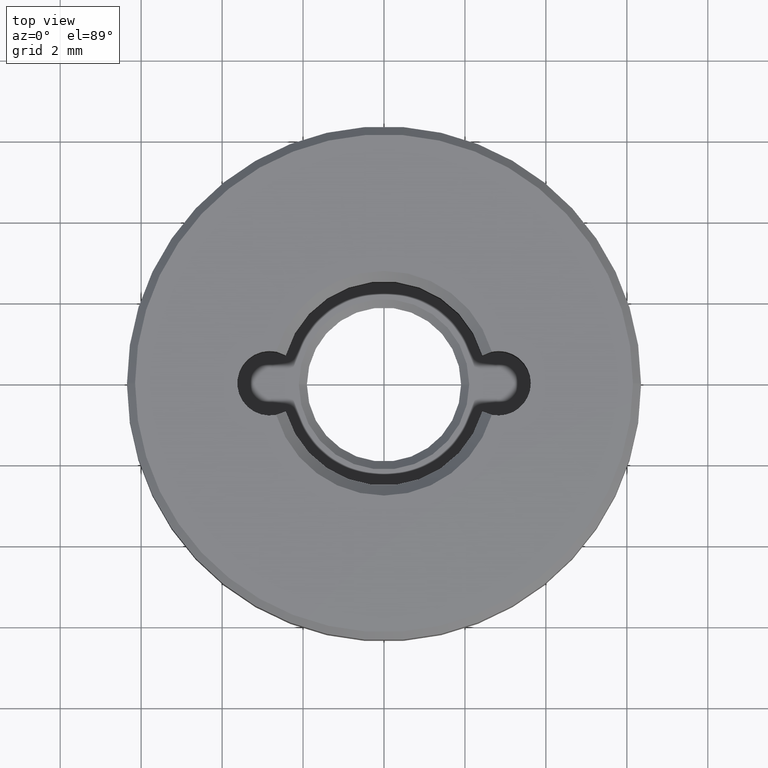
[diagram: clean part render]
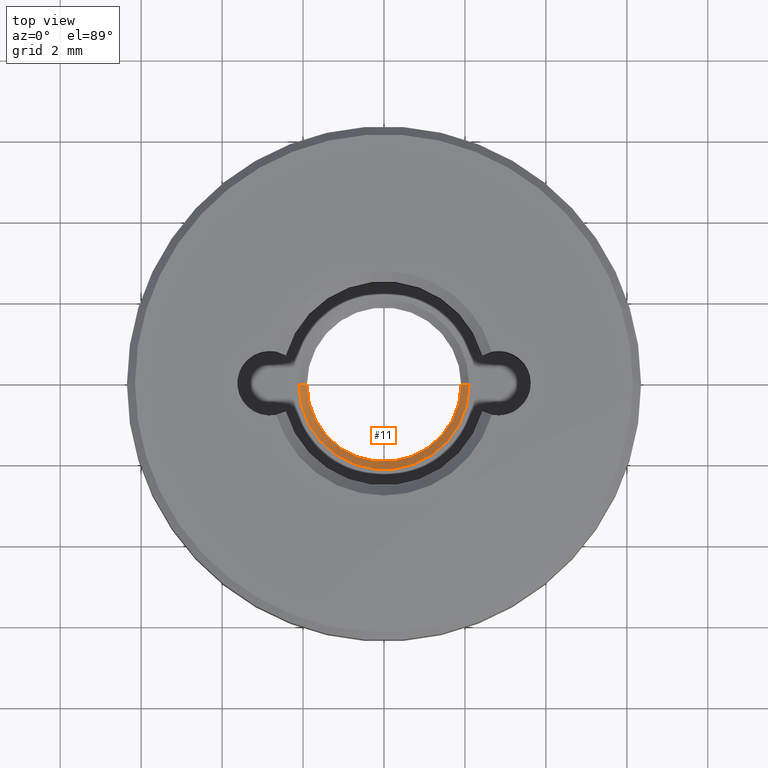
[diagram: same view with one face highlighted and labeled with its STEP entity id]
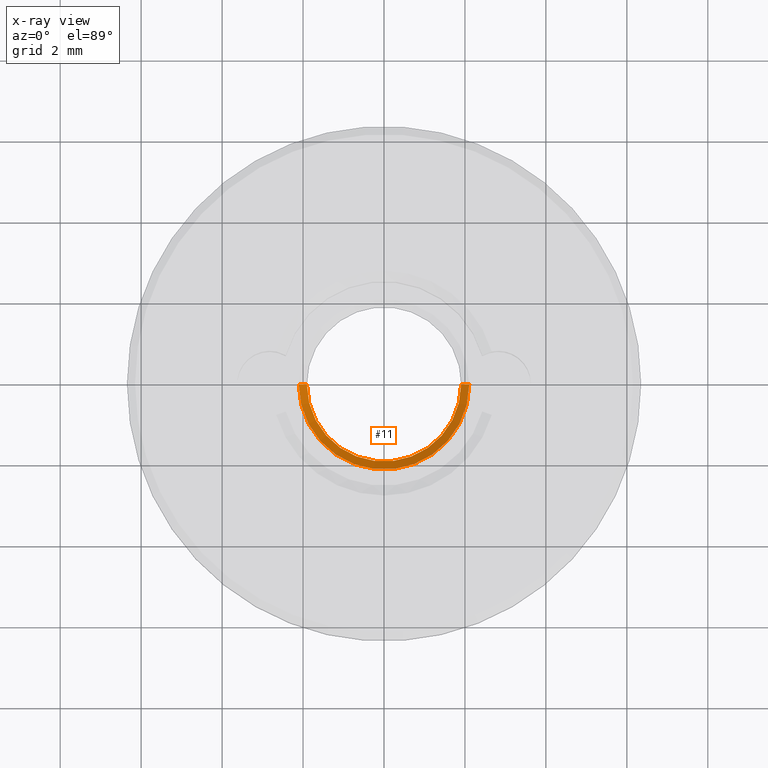
[diagram: x-ray of the same camera — body ghosted, the highlighted face saturated]
A machine part, top view. The second image highlights one B-rep face of the part: STEP entity #11.
The next image is the same camera in x-ray: the body ghosted, the highlighted face saturated — about 0% of this face is hidden behind the body in this view.
In plain terms, the highlighted conical surface has half-angle 45 deg.
Its self-contained STEP definition (entity closure, byte-faithful):
#11 = ADVANCED_FACE ( 'NONE', ( #486 ), #342, .F. ) ;
#19 = DIRECTION ( 'NONE',  ( -0.000000000000000000, -0.000000000000000000, -1.000000000000000000 ) ) ;
#21 = VERTEX_POINT ( 'NONE', #150 ) ;
#42 = DIRECTION ( 'NONE',  ( 0.7071067811865490160, 0.000000000000000000, 0.7071067811865460184 ) ) ;
#56 = VERTEX_POINT ( 'NONE', #698 ) ;
#102 = LINE ( 'NONE', #537, #378 ) ;
#123 = ORIENTED_EDGE ( 'NONE', *, *, #570, .F. ) ;
#124 = DIRECTION ( 'NONE',  ( 1.000000000000000000, 0.000000000000000000, 0.000000000000000000 ) ) ;
#130 = EDGE_CURVE ( 'NONE', #21, #56, #483, .T. ) ;
#150 = CARTESIAN_POINT ( 'NONE',  ( 1.905000000000000027, 0.000000000000000000, 0.4000000000000016875 ) ) ;
#159 = DIRECTION ( 'NONE',  ( 1.000000000000000000, 0.000000000000000000, 0.000000000000000000 ) ) ;
#180 = CARTESIAN_POINT ( 'NONE',  ( 0.000000000000000000, 0.000000000000000000, 0.4000000000000016875 ) ) ;
#190 = AXIS2_PLACEMENT_3D ( 'NONE', #297, #19, #515 ) ;
#201 = ORIENTED_EDGE ( 'NONE', *, *, #130, .F. ) ;
#251 = AXIS2_PLACEMENT_3D ( 'NONE', #491, #423, #159 ) ;
#297 = CARTESIAN_POINT ( 'NONE',  ( 0.000000000000000000, 0.000000000000000000, 0.6000000000000000888 ) ) ;
#314 = CARTESIAN_POINT ( 'NONE',  ( -2.104999999999999094, 2.577881512205177847E-16, 0.6000000000000000888 ) ) ;
#342 = CONICAL_SURFACE ( 'NONE', #251, 1.905000000000000027, 0.7853981633974504994 ) ;
#357 = ORIENTED_EDGE ( 'NONE', *, *, #493, .T. ) ;
#378 = VECTOR ( 'NONE', #422, 1000.000000000000114 ) ;
#408 = VERTEX_POINT ( 'NONE', #314 ) ;
#414 = AXIS2_PLACEMENT_3D ( 'NONE', #180, #604, #124 ) ;
#422 = DIRECTION ( 'NONE',  ( -0.7071067811865490160, 8.659560562354952580E-17, 0.7071067811865460184 ) ) ;
#423 = DIRECTION ( 'NONE',  ( 0.000000000000000000, 0.000000000000000000, 1.000000000000000000 ) ) ;
#462 = VERTEX_POINT ( 'NONE', #694 ) ;
#483 = LINE ( 'NONE', #577, #631 ) ;
#486 = FACE_OUTER_BOUND ( 'NONE', #501, .T. ) ;
#491 = CARTESIAN_POINT ( 'NONE',  ( 0.000000000000000000, 0.000000000000000000, 0.4000000000000016875 ) ) ;
#493 = EDGE_CURVE ( 'NONE', #462, #408, #102, .T. ) ;
#495 = CIRCLE ( 'NONE', #190, 2.104999999999999094 ) ;
#501 = EDGE_LOOP ( 'NONE', ( #123, #357, #556, #201 ) ) ;
#515 = DIRECTION ( 'NONE',  ( 1.000000000000000000, 0.000000000000000000, 0.000000000000000000 ) ) ;
#537 = CARTESIAN_POINT ( 'NONE',  ( -1.905000000000000027, 2.332952152375707747E-16, 0.4000000000000016875 ) ) ;
#556 = ORIENTED_EDGE ( 'NONE', *, *, #678, .F. ) ;
#565 = CIRCLE ( 'NONE', #414, 1.905000000000000027 ) ;
#570 = EDGE_CURVE ( 'NONE', #462, #21, #565, .T. ) ;
#577 = CARTESIAN_POINT ( 'NONE',  ( 1.905000000000000027, 0.000000000000000000, 0.4000000000000016875 ) ) ;
#604 = DIRECTION ( 'NONE',  ( 0.000000000000000000, 0.000000000000000000, 1.000000000000000000 ) ) ;
#631 = VECTOR ( 'NONE', #42, 1000.000000000000114 ) ;
#678 = EDGE_CURVE ( 'NONE', #56, #408, #495, .T. ) ;
#694 = CARTESIAN_POINT ( 'NONE',  ( -1.905000000000000027, 2.332952152375707747E-16, 0.4000000000000016875 ) ) ;
#698 = CARTESIAN_POINT ( 'NONE',  ( 2.104999999999999094, 0.000000000000000000, 0.6000000000000000888 ) ) ;